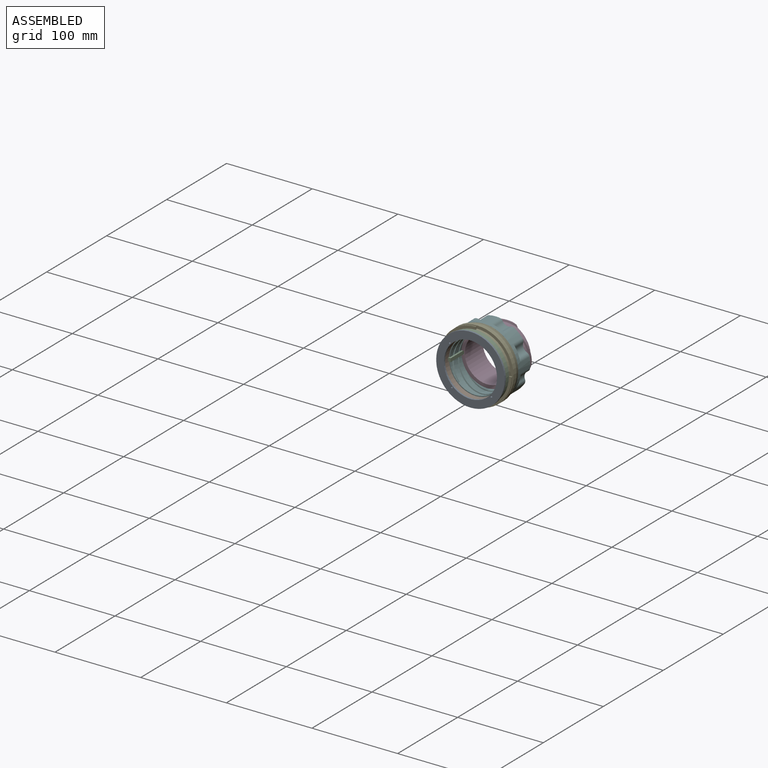
[diagram: assembled view]
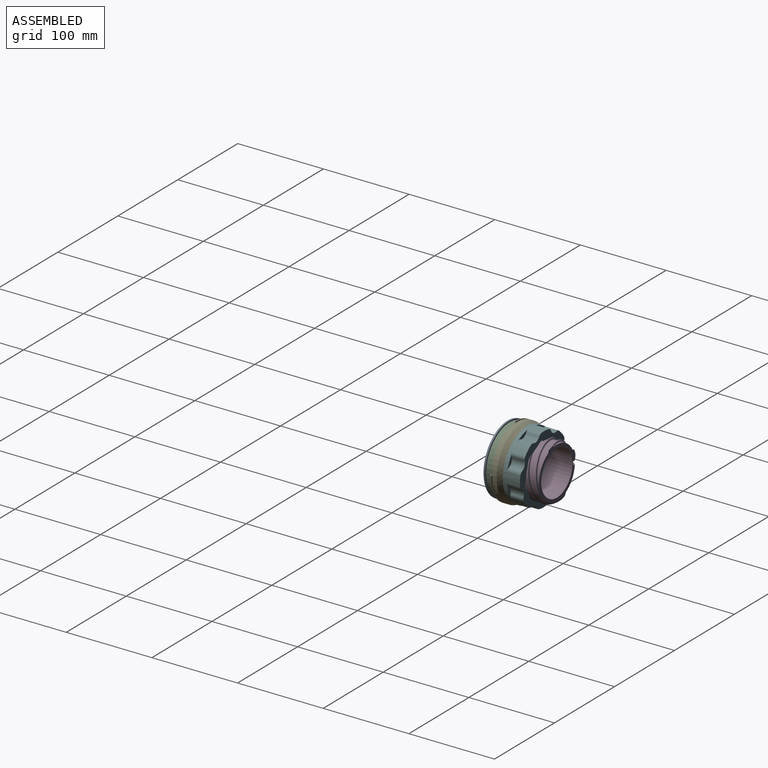
[diagram: assembled view, second angle]
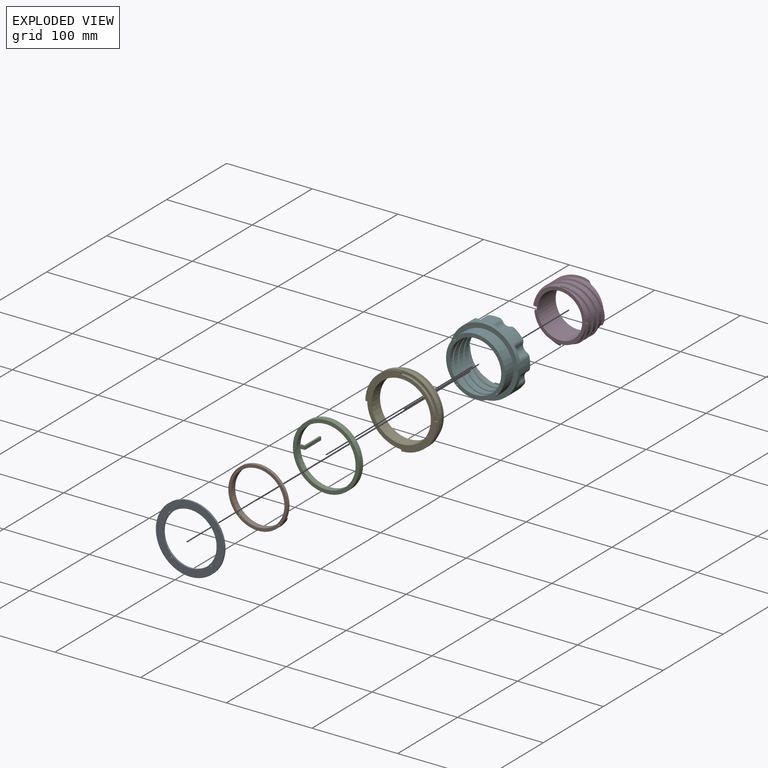
[diagram: exploded view]
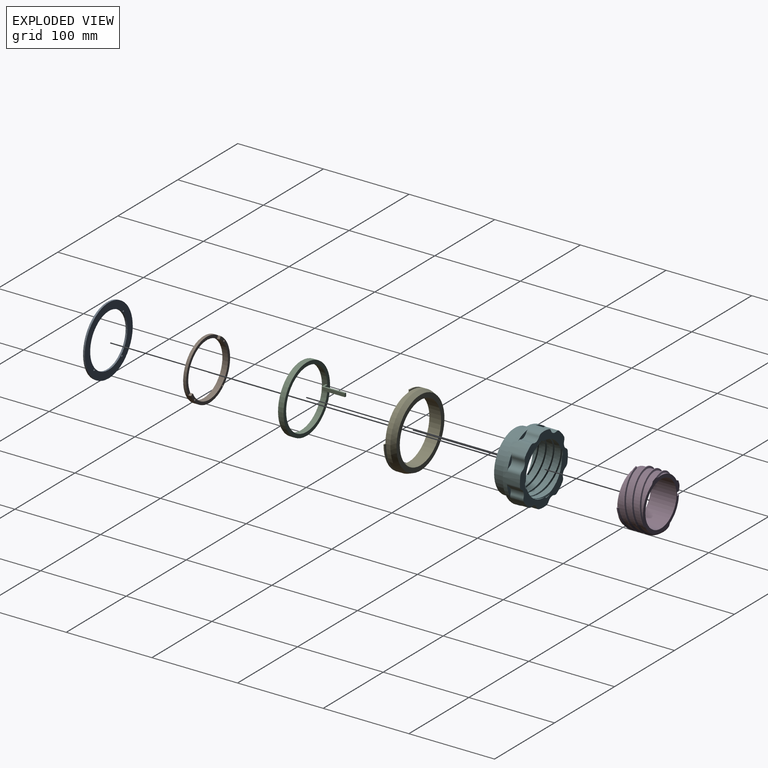
[diagram: exploded view, second angle]
ASSEMBLY  parts=6 mates=6
PART A: 7 faces, bbox 80x2x80 mm
  f0: cylinder r=31mm len=62mm, axis (0,1,0), area 389.6mm2, adj f5,f6
  f1: cylinder r=1mm len=2mm, axis (0,1,0), area 12.6mm2, adj f5,f6
  f2: cylinder r=1mm len=2mm, axis (0,1,0), area 12.6mm2, adj f5,f6
  f3: cylinder r=1mm len=2mm, axis (0,1,0), area 12.6mm2, adj f5,f6
  f4: cylinder r=40mm len=80mm, axis (0,1,0), area 502.7mm2, adj f5,f6
  f5: plane 80x80mm, normal (0,-1,0), area 1998.1mm2, adj f0,f1,f2,f3,f4
  f6: plane 80x80mm, normal (0,1,0), area 1998.1mm2, adj f0,f1,f2,f3,f4
PART B: 10 faces, bbox 69x6.5x69 mm
  f0: cylinder r=31mm len=62mm, axis (0,1,0), area 1022.6mm2, adj f5,f6,f7,f8,f9
  f1: cylinder r=1mm len=6.5mm, axis (0,1,0), area 40.8mm2, adj f5,f6
  f2: cylinder r=1mm len=6.5mm, axis (0,1,0), area 40.8mm2, adj f5,f6
  f3: cylinder r=1mm len=6.5mm, axis (0,1,0), area 40.8mm2, adj f5,f6
  f4: cylinder r=34.5mm len=69mm, axis (0,1,0), area 1138mm2, adj f5,f6,f7,f8,f9
  f5: plane 69x69mm, normal (0,-1,0), area 710.8mm2, adj f0,f1,f2,f3,f4
  f6: plane 69x43.43mm, normal (0,1,0), area 410.7mm2, adj f0,f1,f2,f3,f4,f7,f8
  f7: plane 3.38x3mm, normal (-0.97,0,0.26), area 10.5mm2, adj f0,f4,f6,f9
  f8: plane 3.38x3mm, normal (-0.97,0,-0.26), area 10.5mm2, adj f0,f4,f6,f9
  f9: plane 66.65x26.48mm, normal (0,1,0), area 300.1mm2, adj f0,f4,f7,f8
PART C: 10 faces, bbox 77.5x77.5x31.5 mm
  f0: plane 77.5x77.5mm, normal (0,0,1), area 996.6mm2, adj f1,f2,f5,f6,f8
  f1: cylinder r=34.5mm len=69mm, axis (0,0,-1), area 1401mm2, adj f0,f3,f4,f5,f6
  f2: cylinder r=38.75mm len=77.5mm, axis (0,0,-1), area 1582.6mm2, adj f0,f3
  f3: plane 77.5x77.5mm, normal (0,0,-1), area 978mm2, adj f1,f2
  f4: plane 6.67x4mm, normal (0,0,-1), area 26.6mm2, adj f1,f5,f6,f7
  f5: plane 27x6.61mm, normal (0,-1,0), area 63.2mm2, adj f0,f1,f4,f7,f8,f9
  f6: plane 27x6.61mm, normal (0,1,0), area 63.2mm2, adj f0,f1,f4,f7,f8,f9
  f7: plane 27x4mm, normal (1,0,0), area 108mm2, adj f4,f5,f6,f9
  f8: plane 25x4mm, normal (-1,0,0), area 100mm2, adj f0,f5,f6,f9
  f9: plane 4x2mm, normal (0,0,1), area 8mm2, adj f5,f6,f7,f8
PART D: 38 faces, bbox 64x32x64 mm
  f0: bspline ~32x32mm, area 97.8mm2, adj f2,f12,f32,f35
  f1: bspline ~32x32mm, area 97.8mm2, adj f2,f11,f32,f35
  f2: cylinder r=32mm len=31.94mm, axis (0,1,0), area 48.3mm2, adj f0,f1,f32,f35
  f3: bspline ~64x32mm, area 199.8mm2, adj f5,f11,f33,f35
  f4: bspline ~64x32mm, area 199.8mm2, adj f5,f10,f33,f35
  f5: cylinder r=32mm len=63.94mm, axis (0,1,0), area 98.5mm2, adj f3,f4,f33,f35
  f6: bspline ~64x64mm, area 301.8mm2, adj f8,f10,f34,f35
  f7: bspline ~64x64mm, area 301.8mm2, adj f8,f9,f34,f35
  f8: cylinder r=32mm len=64mm, axis (0,1,0), area 148.8mm2, adj f6,f7,f34,f35
  f9: cylinder r=30mm len=60mm, axis (0,1,0), area 1104.6mm2, adj f7,f13,f23,f31,f34,f35,f36
  f10: cylinder r=30mm len=60mm, axis (0,1,0), area 857.8mm2, adj f4,f6,f13,f33,f35
  f11: cylinder r=30mm len=59.93mm, axis (0,1,0), area 527.9mm2, adj f1,f3,f13,f32,f35
  f12: cylinder r=30mm len=29.93mm, axis (0,1,0), area 194.4mm2, adj f0,f13,f35
  f13: plane 60x59.93mm, normal (0,-1,0), area 691.8mm2, adj f9,f10,f11,f12,f30,f35,f36,f37
  f14: bspline ~64x48mm, area 230.9mm2, adj f16,f29,f31,f36
  f15: bspline ~64x48mm, area 214mm2, adj f16,f28,f31,f36
  f16: cylinder r=32mm len=63.94mm, axis (0,1,0), area 109.7mm2, adj f14,f15,f31,f36
  f17: bspline ~48x32mm, area 128.9mm2, adj f19,f28,f31,f36
  f18: bspline ~48x32mm, area 112mm2, adj f19,f27,f31,f36
  f19: cylinder r=32mm len=45.43mm, axis (0,1,0), area 59.4mm2, adj f17,f18,f31,f36
  f20: bspline ~16x6.02mm, area 26.9mm2, adj f22,f27,f31,f36
  f21: bspline ~16x6.02mm, area 10mm2, adj f22,f26,f31,f36
  f22: cylinder r=32mm len=11.49mm, axis (0,1,0), area 9.2mm2, adj f20,f21,f31,f36
  f23: bspline ~64x64mm, area 332.9mm2, adj f9,f25,f31,f36
  f24: bspline ~64x64mm, area 316mm2, adj f25,f29,f31,f36
  f25: cylinder r=32mm len=64mm, axis (0,1,0), area 159.9mm2, adj f23,f24,f31,f36
  f26: cylinder r=30mm len=3.24mm, axis (0,1,0), area 1mm2, adj f21,f31,f36
  f27: cylinder r=30mm len=35.17mm, axis (0,1,0), area 224.3mm2, adj f18,f20,f31,f36
  f28: cylinder r=30mm len=59.93mm, axis (0,1,0), area 554.1mm2, adj f15,f17,f31,f36
  f29: cylinder r=30mm len=60mm, axis (0,1,0), area 884mm2, adj f14,f24,f31,f36
  f30: cylinder r=26mm len=52mm, axis (0,1,0), area 4900.9mm2, adj f13,f31
  f31: plane 61.82x61.82mm, normal (0,1,0), area 756.2mm2, adj f9,f14,f15,f16,f17,f18,f19,f20
  f32: plane 2x2mm, normal (0,0,-1), area 3mm2, adj f0,f1,f2,f11
  f33: plane 2x2mm, normal (1,0,0), area 3mm2, adj f3,f4,f5,f10
  f34: plane 2x2mm, normal (0,0,1), area 3mm2, adj f6,f7,f8,f9
  f35: plane 30x4.94mm, normal (1,0,0), area 97mm2, adj f0,f1,f2,f3,f4,f5,f6,f7
  f36: plane 30x4.94mm, normal (-1,0,0), area 100mm2, adj f9,f13,f14,f15,f16,f17,f18,f19
  f37: plane 30x4mm, normal (0,0,1), area 120mm2, adj f13,f31,f35,f36
PART E: 15 faces, bbox 84x13.8x84 mm
  f0: cylinder r=38.75mm len=77.5mm, axis (0,1,0), area 584.3mm2, adj f4,f5,f7,f8,f10,f11,f12,f14
  f1: cylinder r=42mm len=84mm, axis (0,1,0), area 1319.5mm2, adj f5,f6
  f2: plane 80x80mm, normal (0,-1,0), area 1287.3mm2, adj f3,f6
  f3: cylinder r=34.5mm len=69mm, axis (0,1,0), area 2980.6mm2, adj f2,f4
  f4: plane 83.99x83.99mm, normal (0,1,0), area 1384.7mm2, adj f0,f3,f7,f8,f9,f11,f12,f13
  f5: plane 84x84mm, normal (0,1,0), area 824.5mm2, adj f0,f1
  f6: cone r=40mm half-angle=19.2deg, axis (0,1,0), area 1568.3mm2, adj f1,f2
  f7: plane 3.25x1.2mm, normal (-1,0,0), area 3.9mm2, adj f0,f4,f9,f10
  f8: plane 3.25x1.2mm, normal (0,0,-1), area 3.9mm2, adj f0,f4,f9,f10
  f9: cylinder r=42.07mm len=42mm, axis (0,1,0), area 79.1mm2, adj f4,f7,f8,f10
  f10: plane 42x42mm, normal (0,-1,0), area 204.6mm2, adj f0,f7,f8,f9
  f11: plane 3.25x1.2mm, normal (0,0,1), area 3.9mm2, adj f0,f4,f13,f14
  f12: plane 3.25x1.2mm, normal (1,0,0), area 3.9mm2, adj f0,f4,f13,f14
  f13: cylinder r=42.2mm len=42mm, axis (0,1,0), area 79.1mm2, adj f4,f11,f12,f14
  f14: plane 42x42mm, normal (0,-1,0), area 202.1mm2, adj f0,f11,f12,f13
PART F: 63 faces, bbox 80x36x80 mm
  f0: plane 80x80mm, normal (0,1,0), area 1808.9mm2, adj f1,f3,f5,f7,f13,f16,f18,f20
  f1: cylinder r=30mm len=60mm, axis (0,1,0), area 1256.7mm2, adj f0,f9,f57,f59,f61
  f2: cylinder r=1mm len=10mm, axis (0,-1,0), area 61.3mm2, adj f9,f11,f57,f58,f59,f60,f61,f62
  f3: cylinder r=30mm len=60mm, axis (0,1,0), area 1256.7mm2, adj f0,f9,f52,f55,f56
  f4: cylinder r=1mm len=10mm, axis (0,-1,0), area 61.3mm2, adj f9,f10,f52,f54,f55,f56,f57,f58
  f5: cylinder r=30mm len=60mm, axis (0,1,0), area 1256.7mm2, adj f0,f9,f47,f51,f53
  f6: cylinder r=1mm len=10mm, axis (0,-1,0), area 61.3mm2, adj f9,f12,f47,f48,f51,f52,f53,f54
  f7: cylinder r=30mm len=60mm, axis (0,1,0), area 1256.7mm2, adj f0,f9,f49,f50,f60
  f8: cylinder r=34.5mm len=69mm, axis (0,1,0), area 3034.8mm2, adj f9,f14
  f9: plane 69x69mm, normal (0,-1,0), area 902.4mm2, adj f1,f2,f3,f4,f5,f6,f7,f8
  f10: plane 2x1.76mm, normal (0,-1,0), area 2.9mm2, adj f4,f54
  f11: plane 2x1.76mm, normal (0,-1,0), area 2.9mm2, adj f2,f58
  f12: plane 2x1.76mm, normal (0,-1,0), area 2.9mm2, adj f6,f48
  f13: cylinder r=40mm len=80mm, axis (0,-1,0), area 2668.8mm2, adj f0,f14,f15,f17,f19,f21,f23,f25
  f14: plane 80x80mm, normal (0,-1,0), area 1287.3mm2, adj f8,f13
  f15: plane 17.63x7.3mm, normal (0,1,0), area 40.7mm2, adj f13,f16,f45,f46
  f16: cylinder r=7.5mm len=15.3mm, axis (0,1,0), area 167.8mm2, adj f0,f15,f45,f46
  f17: plane 17.63x7.3mm, normal (0,1,0), area 40.7mm2, adj f13,f18,f43,f44
  f18: cylinder r=7.5mm len=15.3mm, axis (0,1,0), area 167.8mm2, adj f0,f17,f43,f44
  f19: plane 17.63x7.3mm, normal (0,1,0), area 40.7mm2, adj f13,f20,f41,f42
  f20: cylinder r=7.5mm len=15.3mm, axis (0,1,0), area 167.8mm2, adj f0,f19,f41,f42
  f21: plane 17.63x7.3mm, normal (0,1,0), area 40.7mm2, adj f13,f22,f39,f40
  f22: cylinder r=7.5mm len=15.3mm, axis (0,1,0), area 167.8mm2, adj f0,f21,f39,f40
  f23: plane 17.63x7.3mm, normal (0,1,0), area 40.7mm2, adj f13,f24,f37,f38
  f24: cylinder r=7.5mm len=15.3mm, axis (0,1,0), area 167.8mm2, adj f0,f23,f37,f38
  f25: plane 17.63x7.3mm, normal (0,1,0), area 40.7mm2, adj f13,f26,f35,f36
  f26: cylinder r=7.5mm len=15.3mm, axis (0,1,0), area 167.8mm2, adj f0,f25,f35,f36
  f27: plane 17.63x7.3mm, normal (0,1,0), area 40.7mm2, adj f13,f28,f33,f34
  f28: cylinder r=7.5mm len=15.3mm, axis (0,1,0), area 167.8mm2, adj f0,f27,f33,f34
  f29: plane 17.63x7.3mm, normal (0,1,0), area 40.7mm2, adj f13,f30,f31,f32
  f30: cylinder r=7.5mm len=15.3mm, axis (0,1,0), area 167.8mm2, adj f0,f29,f31,f32
  f31: cylinder r=5mm len=15.3mm, axis (0,-1,0), area 74.4mm2, adj f0,f13,f29,f30
  f32: cylinder r=5mm len=15.3mm, axis (0,1,0), area 74.4mm2, adj f0,f13,f29,f30
  f33: cylinder r=5mm len=15.3mm, axis (0,-1,0), area 74.4mm2, adj f0,f13,f27,f28
  f34: cylinder r=5mm len=15.3mm, axis (0,1,0), area 74.4mm2, adj f0,f13,f27,f28
  f35: cylinder r=5mm len=15.3mm, axis (0,-1,0), area 74.4mm2, adj f0,f13,f25,f26
  f36: cylinder r=5mm len=15.3mm, axis (0,1,0), area 74.4mm2, adj f0,f13,f25,f26
  f37: cylinder r=5mm len=15.3mm, axis (0,-1,0), area 74.4mm2, adj f0,f13,f23,f24
  f38: cylinder r=5mm len=15.3mm, axis (0,1,0), area 74.4mm2, adj f0,f13,f23,f24
  f39: cylinder r=5mm len=15.3mm, axis (0,-1,0), area 74.4mm2, adj f0,f13,f21,f22
  f40: cylinder r=5mm len=15.3mm, axis (0,1,0), area 74.4mm2, adj f0,f13,f21,f22
  f41: cylinder r=5mm len=15.3mm, axis (0,-1,0), area 74.4mm2, adj f0,f13,f19,f20
  f42: cylinder r=5mm len=15.3mm, axis (0,1,0), area 74.4mm2, adj f0,f13,f19,f20
  f43: cylinder r=5mm len=15.3mm, axis (0,-1,0), area 74.4mm2, adj f0,f13,f17,f18
  f44: cylinder r=5mm len=15.3mm, axis (0,1,0), area 74.4mm2, adj f0,f13,f17,f18
  f45: cylinder r=5mm len=15.3mm, axis (0,-1,0), area 74.4mm2, adj f0,f13,f15,f16
  f46: cylinder r=5mm len=15.3mm, axis (0,1,0), area 74.4mm2, adj f0,f13,f15,f16
  f47: bspline ~65.58x64.92mm, area 382.2mm2, adj f0,f5,f6,f48,f49
  f48: cylinder r=32mm len=64mm, axis (0,1,0), area 183.7mm2, adj f0,f6,f12,f47,f49,f50
  f49: plane 2x2mm, normal (0,0,1), area 3mm2, adj f7,f47,f48,f50
  f50: bspline ~65.58x64.92mm, area 365.5mm2, adj f0,f7,f48,f49
  f51: plane 2x1.75mm, normal (1,0,0), area 2.7mm2, adj f5,f6,f52,f53
  f52: bspline ~65.58x64.92mm, area 382.1mm2, adj f0,f3,f4,f6,f51,f54
  f53: bspline ~65.58x64.92mm, area 365.4mm2, adj f0,f5,f6,f51,f54
  f54: cylinder r=32mm len=64mm, axis (0,1,0), area 183.1mm2, adj f0,f4,f6,f10,f52,f53
  f55: plane 2x1.75mm, normal (0,0,-1), area 2.7mm2, adj f3,f4,f56,f57
  f56: bspline ~65.58x64.92mm, area 365.4mm2, adj f0,f3,f4,f55,f58
  f57: bspline ~65.58x64.92mm, area 382.1mm2, adj f0,f1,f2,f4,f55,f58
  f58: cylinder r=32mm len=64mm, axis (0,1,0), area 183.1mm2, adj f0,f2,f4,f11,f56,f57
  f59: plane 2x1.75mm, normal (-1,0,0), area 2.7mm2, adj f1,f2,f60,f61
  f60: bspline ~65.58x64.92mm, area 382.3mm2, adj f0,f2,f7,f59,f62
  f61: bspline ~65.58x64.92mm, area 365.4mm2, adj f0,f1,f2,f59,f62
  f62: cylinder r=32mm len=64mm, axis (0,1,0), area 183.7mm2, adj f0,f2,f60,f61
PLACE A rot(axis=(0,1,0),131.9deg) t=(12.98,76.14,18.54)mm
PLACE B rot(axis=(0,1,0),131.9deg) t=(12.98,79.14,18.54)mm
PLACE C rot(axis=(-1,0,0),90deg) t=(12.98,76.39,18.54)mm
PLACE D rot(axis=(0,-1,0),90deg) t=(12.98,131.83,18.54)mm
PLACE E rot(axis=(1,0,0),180deg) t=(12.98,82.89,18.54)mm fixed
PLACE F rot(axis=(0,1,0),131.9deg) t=(12.98,96.64,18.54)mm
MATE parallel D.f36 <-> C.f5  axis (0,0,-1) through (-15.77,116.81,20.54)mm
MATE cylindrical D.f30 <-> F.f1  axis (0,1,0) through (12.98,131.83,18.54)mm
MATE fastened A.f2 <-> B.f2  axis (0,1,0) through (-8.89,76.14,-5.83)mm
MATE fastened C.f1 <-> E.f3  axis (0,1,0) through (12.98,82.89,18.54)mm
MATE revolute F.f8 <-> E.f3  axis (0,-1,0) through (12.98,96.64,18.54)mm
MATE fastened B.f2 <-> F.f4  axis (0,1,0) through (-8.89,82.64,-5.83)mm
